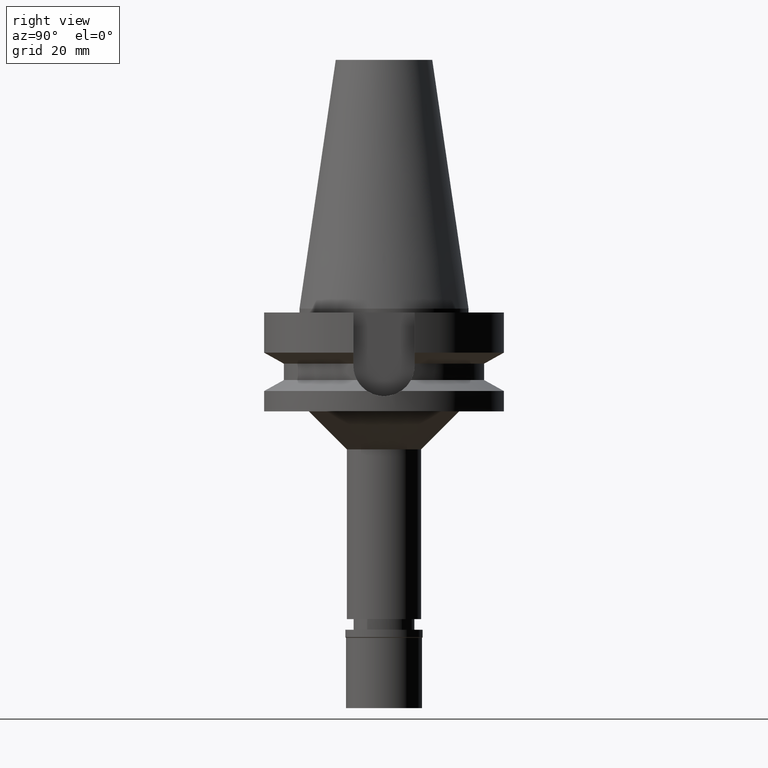
[diagram: clean part render]
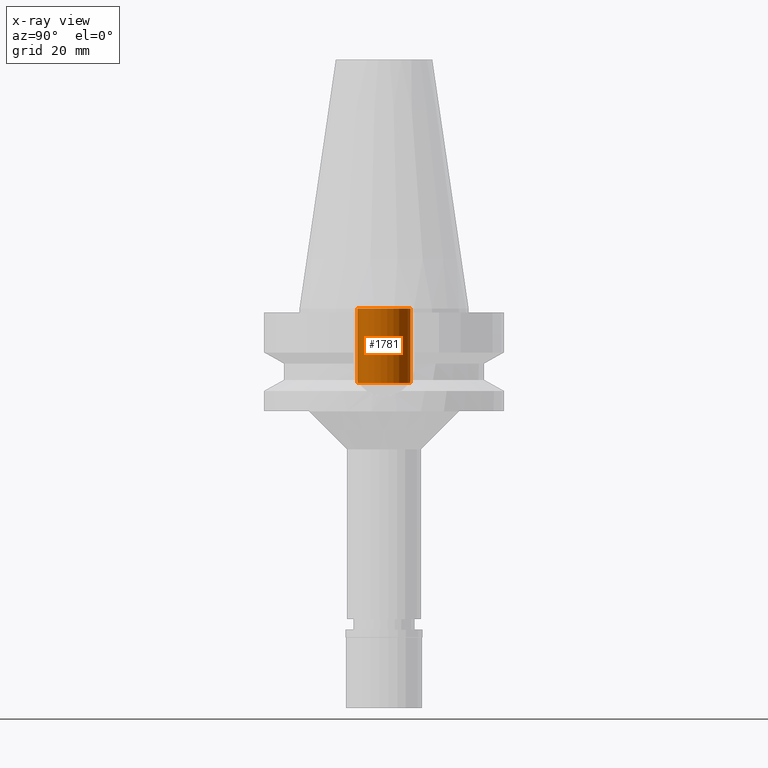
[diagram: x-ray — body ghosted, one internal face saturated and labeled with its STEP entity id]
A machine part, right view, then the same camera in x-ray: the body is ghosted and one INTERNAL B-rep face — a face not visible from any outside direction — is saturated and labeled: STEP entity #1781.
In plain terms, the highlighted cylindrical surface (edge-blend (fillet) strip) has radius 7 mm, axis along (0, 0, -1).
Its self-contained STEP definition (entity closure, byte-faithful):
#25 = CARTESIAN_POINT ( 'NONE',  ( 0.0000000000000000000, -7.000000000000000000, 0.0000000000000000000 ) ) ;
#325 = LINE ( 'NONE', #377, #1448 ) ;
#377 = CARTESIAN_POINT ( 'NONE',  ( 0.0000000000000000000, 7.000000000000000000, -19.59999999999999787 ) ) ;
#431 = DIRECTION ( 'NONE',  ( 0.0000000000000000000, 0.0000000000000000000, 1.000000000000000000 ) ) ;
#553 = EDGE_CURVE ( 'NONE', #1163, #2645, #325, .T. ) ;
#560 = ORIENTED_EDGE ( 'NONE', *, *, #1573, .T. ) ;
#561 = DIRECTION ( 'NONE',  ( 0.0000000000000000000, -1.000000000000000000, 0.0000000000000000000 ) ) ;
#601 = DIRECTION ( 'NONE',  ( 0.0000000000000000000, 0.0000000000000000000, 1.000000000000000000 ) ) ;
#971 = CARTESIAN_POINT ( 'NONE',  ( 0.0000000000000000000, 7.000000000000000000, -19.59999999999999787 ) ) ;
#1018 = FACE_OUTER_BOUND ( 'NONE', #1222, .T. ) ;
#1045 = VECTOR ( 'NONE', #431, 1000.000000000000000 ) ;
#1100 = ORIENTED_EDGE ( 'NONE', *, *, #2424, .T. ) ;
#1124 = DIRECTION ( 'NONE',  ( 0.0000000000000000000, -1.000000000000000000, 0.0000000000000000000 ) ) ;
#1139 = CARTESIAN_POINT ( 'NONE',  ( 0.0000000000000000000, 0.0000000000000000000, 0.0000000000000000000 ) ) ;
#1163 = VERTEX_POINT ( 'NONE', #971 ) ;
#1222 = EDGE_LOOP ( 'NONE', ( #2707, #1100, #560, #2314 ) ) ;
#1288 = AXIS2_PLACEMENT_3D ( 'NONE', #1139, #1875, #1124 ) ;
#1371 = CARTESIAN_POINT ( 'NONE',  ( 0.0000000000000000000, 0.0000000000000000000, -19.59999999999999787 ) ) ;
#1448 = VECTOR ( 'NONE', #601, 1000.000000000000000 ) ;
#1515 = CARTESIAN_POINT ( 'NONE',  ( 0.0000000000000000000, 0.0000000000000000000, 0.0000000000000000000 ) ) ;
#1543 = EDGE_CURVE ( 'NONE', #1163, #3108, #1799, .T. ) ;
#1573 = EDGE_CURVE ( 'NONE', #2188, #2645, #2603, .T. ) ;
#1581 = DIRECTION ( 'NONE',  ( 0.0000000000000000000, 1.000000000000000000, 0.0000000000000000000 ) ) ;
#1769 = DIRECTION ( 'NONE',  ( 0.0000000000000000000, 0.0000000000000000000, -1.000000000000000000 ) ) ;
#1781 = ADVANCED_FACE ( 'NONE', ( #1018 ), #2733, .F. ) ;
#1799 = CIRCLE ( 'NONE', #2654, 7.000000000000000000 ) ;
#1824 = DIRECTION ( 'NONE',  ( 0.0000000000000000000, 0.0000000000000000000, -1.000000000000000000 ) ) ;
#1875 = DIRECTION ( 'NONE',  ( 0.0000000000000000000, 0.0000000000000000000, 1.000000000000000000 ) ) ;
#2050 = AXIS2_PLACEMENT_3D ( 'NONE', #1515, #1769, #561 ) ;
#2176 = CARTESIAN_POINT ( 'NONE',  ( 0.0000000000000000000, -7.000000000000000000, -19.59999999999999787 ) ) ;
#2188 = VERTEX_POINT ( 'NONE', #25 ) ;
#2246 = CARTESIAN_POINT ( 'NONE',  ( 0.0000000000000000000, 7.000000000000000000, 0.0000000000000000000 ) ) ;
#2314 = ORIENTED_EDGE ( 'NONE', *, *, #553, .F. ) ;
#2394 = LINE ( 'NONE', #2898, #1045 ) ;
#2424 = EDGE_CURVE ( 'NONE', #3108, #2188, #2394, .T. ) ;
#2603 = CIRCLE ( 'NONE', #1288, 7.000000000000000000 ) ;
#2645 = VERTEX_POINT ( 'NONE', #2246 ) ;
#2654 = AXIS2_PLACEMENT_3D ( 'NONE', #1371, #1824, #1581 ) ;
#2707 = ORIENTED_EDGE ( 'NONE', *, *, #1543, .T. ) ;
#2733 = CYLINDRICAL_SURFACE ( 'NONE', #2050, 7.000000000000000000 ) ;
#2898 = CARTESIAN_POINT ( 'NONE',  ( 0.0000000000000000000, -7.000000000000000000, -19.59999999999999787 ) ) ;
#3108 = VERTEX_POINT ( 'NONE', #2176 ) ;